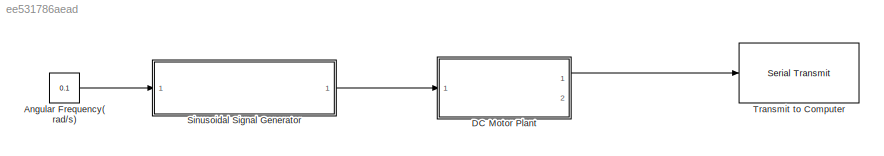
MODEL slx_ee531786aead
KIND model
CONFIG AbsTol = auto
CONFIG EnableMultiTasking = on
CONFIG FixedStep = auto
CONFIG MaxStep = auto
CONFIG MinStep = auto
CONFIG RelTol = 1e-3
CONFIG SampleTimeConstraint = Unconstrained
CONFIG SolverName = FixedStepAuto
CONFIG StartTime = 0.0
CONFIG StopTime = 70
BLOCK [Constant] Angular Frequency(rad//s)
  Value = 0.1
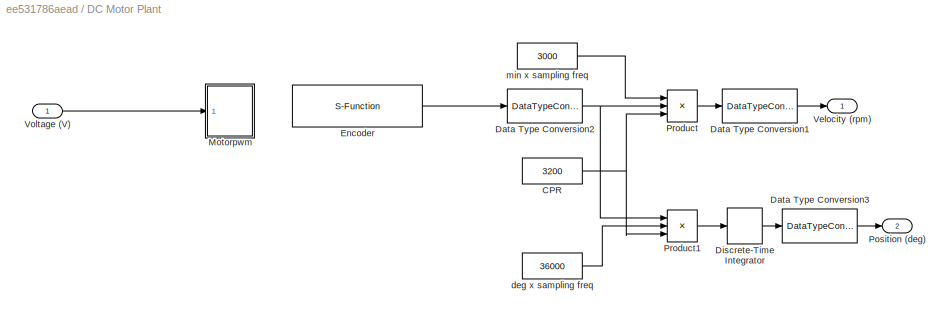
BLOCK [SubSystem] DC Motor Plant
  Ports = [1, 2]
  RequestExecContextInheritance = off
BLOCK [Constant] DC Motor Plant/CPR
  Value = 3200
BLOCK [DataTypeConversion] DC Motor Plant/Data Type Conversion1
  OutDataTypeStr = uint8
  RndMeth = Floor
  SaturateOnIntegerOverflow = off
BLOCK [DataTypeConversion] DC Motor Plant/Data Type Conversion2
  OutDataTypeStr = double
  RndMeth = Round
  SaturateOnIntegerOverflow = off
BLOCK [DataTypeConversion] DC Motor Plant/Data Type Conversion3
  OutDataTypeStr = uint8
  RndMeth = Floor
  SaturateOnIntegerOverflow = off
BLOCK [DiscreteIntegrator] DC Motor Plant/Discrete-Time Integrator
  ICPrevOutput = DiscIntNeverNeededParam
  ICPrevScaledInput = DiscIntNeverNeededParam
  InitialConditionSetting = Auto
  Ports = [1, 1]
  SampleTime = -1
BLOCK [S-Function] DC Motor Plant/Encoder
  CopyFcn = set_param(gcbh,'LinkStatus','none')
  EnableBusSupport = off
  FunctionName = sfcn_encoder
  InitFcn = try, set_param(gcb,'FunctionName','sfcn_encoder'), end
  OpenFcn = sfunctionwizard(gcbh)
  Parameters = uint8(0),uint8(2),uint8(3)
  Ports = [0, 1]
  PreSaveFcn = try, set_param(gcb,'FunctionName','sfcn_encoder'), end
  SFcnIsStateOwnerBlock = off
  SFunctionDeploymentMode = off
  SFunctionModules = sfcn_encoder_wrapper
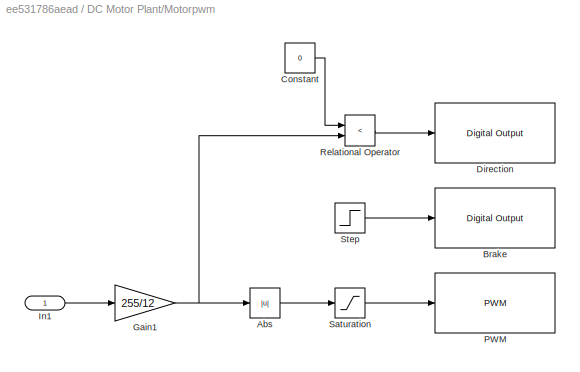
BLOCK [SubSystem] DC Motor Plant/Motorpwm
  Ports = [1]
  RequestExecContextInheritance = off
BLOCK [Abs] DC Motor Plant/Motorpwm/Abs
  SaturateOnIntegerOverflow = off
BLOCK [Reference] DC Motor Plant/Motorpwm/Brake  REF=arduinolib/Digital Output
  Ports = [1]
  SourceBlock = arduinolib/Digital Output
  SourceProductBaseCode = ARDUINO
  SourceType = Arduino Digital Output
BLOCK [Constant] DC Motor Plant/Motorpwm/Constant
  Value = 0
BLOCK [Reference] DC Motor Plant/Motorpwm/Direction   REF=arduinolib/Digital Output
  Ports = [1]
  SourceBlock = arduinolib/Digital Output
  SourceProductBaseCode = ARDUINO
  SourceType = Arduino Digital Output
BLOCK [Gain] DC Motor Plant/Motorpwm/Gain1
  Gain = 255/12
BLOCK [Inport] DC Motor Plant/Motorpwm/In1
BLOCK [Reference] DC Motor Plant/Motorpwm/PWM  REF=arduinolib/PWM
  Ports = [1]
  SourceBlock = arduinolib/PWM
  SourceProductBaseCode = ARDUINO
  SourceType = Arduino PWM
BLOCK [RelationalOperator] DC Motor Plant/Motorpwm/Relational Operator
  InputSameDT = off
  Operator = <
  OutDataTypeStr = boolean
  Ports = [2, 1]
  RndMeth = Simplest
BLOCK [Saturate] DC Motor Plant/Motorpwm/Saturation
  LowerLimit = 0
  UpperLimit = 255
BLOCK [Step] DC Motor Plant/Motorpwm/Step
  After = 0
  SampleTime = 0
  Time = 0
BLOCK [Outport] DC Motor Plant/Position (deg)
  Port = 2
  VectorParamsAs1DForOutWhenUnconnected = off
BLOCK [Product] DC Motor Plant/Product
  Inputs = **/
  Ports = [3, 1]
BLOCK [Product] DC Motor Plant/Product1
  Inputs = **/
  Ports = [3, 1]
BLOCK [Outport] DC Motor Plant/Velocity (rpm)
  VectorParamsAs1DForOutWhenUnconnected = off
BLOCK [Inport] DC Motor Plant/Voltage (V)
BLOCK [Constant] DC Motor Plant/deg x sampling freq
  Value = 36000
BLOCK [Constant] DC Motor Plant/min x sampling freq
  Value = 3000
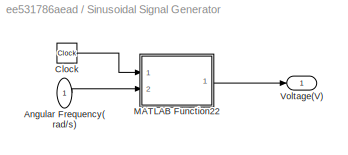
BLOCK [SubSystem] Sinusoidal Signal Generator
  Ports = [1, 1]
  RequestExecContextInheritance = off
BLOCK [Inport] Sinusoidal Signal Generator/Angular Frequency(rad//s)
BLOCK [Clock] Sinusoidal Signal Generator/Clock
  Decimation = 1
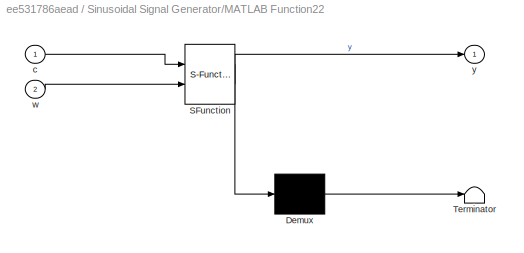
BLOCK [SubSystem] Sinusoidal Signal Generator/MATLAB Function22
  ErrorFcn = Stateflow.Translate.translate
  PermitHierarchicalResolution = ExplicitOnly
  Ports = [2, 1]
  RequestExecContextInheritance = off
  SFBlockType = MATLAB Function
  TreatAsAtomicUnit = on
BLOCK [Demux] Sinusoidal Signal Generator/MATLAB Function22/ Demux 
  Outputs = 1
  Ports = [1, 1]
BLOCK [S-Function] Sinusoidal Signal Generator/MATLAB Function22/ SFunction 
  EnableBusSupport = on
  FunctionName = sf_sfun
  PortCounts = [2 2]
  Ports = [2, 2]
  SFcnIsStateOwnerBlock = off
  SFunctionDeploymentMode = off
  Tag = Stateflow S-Function 1
BLOCK [Terminator] Sinusoidal Signal Generator/MATLAB Function22/ Terminator 
BLOCK [Inport] Sinusoidal Signal Generator/MATLAB Function22/c
BLOCK [Inport] Sinusoidal Signal Generator/MATLAB Function22/w
  Port = 2
BLOCK [Outport] Sinusoidal Signal Generator/MATLAB Function22/y
BLOCK [Outport] Sinusoidal Signal Generator/Voltage(V)
BLOCK [Reference] Transmit to Computer  REF=arduinolib/Serial Transmit
  Ports = [1]
  SourceBlock = arduinolib/Serial Transmit
  SourceProductBaseCode = ARDUINO
  SourceType = Arduino Serial Transmit
LINE Angular Frequency(rad//s):1 -> Sinusoidal Signal Generator:1
NET DC Motor Plant/CPR:1 -> DC Motor Plant/Product1:3, DC Motor Plant/Product:3
LINE DC Motor Plant/Data Type Conversion1:1 -> DC Motor Plant/Velocity (rpm):1
NET DC Motor Plant/Data Type Conversion2:1 -> DC Motor Plant/Product1:1, DC Motor Plant/Product:2
LINE DC Motor Plant/Data Type Conversion3:1 -> DC Motor Plant/Position (deg):1
LINE DC Motor Plant/Discrete-Time Integrator:1 -> DC Motor Plant/Data Type Conversion3:1
LINE DC Motor Plant/Encoder:1 -> DC Motor Plant/Data Type Conversion2:1
LINE DC Motor Plant/Motorpwm/Abs:1 -> DC Motor Plant/Motorpwm/Saturation:1
LINE DC Motor Plant/Motorpwm/Constant:1 -> DC Motor Plant/Motorpwm/Relational Operator:1
NET DC Motor Plant/Motorpwm/Gain1:1 -> DC Motor Plant/Motorpwm/Abs:1, DC Motor Plant/Motorpwm/Relational Operator:2
LINE DC Motor Plant/Motorpwm/In1:1 -> DC Motor Plant/Motorpwm/Gain1:1
LINE DC Motor Plant/Motorpwm/Relational Operator:1 -> DC Motor Plant/Motorpwm/Direction :1
LINE DC Motor Plant/Motorpwm/Saturation:1 -> DC Motor Plant/Motorpwm/PWM:1
LINE DC Motor Plant/Motorpwm/Step:1 -> DC Motor Plant/Motorpwm/Brake:1
LINE DC Motor Plant/Product1:1 -> DC Motor Plant/Discrete-Time Integrator:1
LINE DC Motor Plant/Product:1 -> DC Motor Plant/Data Type Conversion1:1
LINE DC Motor Plant/Voltage (V):1 -> DC Motor Plant/Motorpwm:1
LINE DC Motor Plant/deg x sampling freq:1 -> DC Motor Plant/Product1:2
LINE DC Motor Plant/min x sampling freq:1 -> DC Motor Plant/Product:1
LINE DC Motor Plant:1 -> Transmit to Computer:1
LINE Sinusoidal Signal Generator/Angular Frequency(rad//s):1 -> Sinusoidal Signal Generator/MATLAB Function22:2
LINE Sinusoidal Signal Generator/Clock:1 -> Sinusoidal Signal Generator/MATLAB Function22:1
LINE Sinusoidal Signal Generator/MATLAB Function22:1 -> Sinusoidal Signal Generator/Voltage(V):1
LINE Sinusoidal Signal Generator:1 -> DC Motor Plant:1
note: NET lines group one-source signal fan-out (src -> all destinations, sorted); 1:1 wires keep LINE
CHART Sinusoidal Signal Generator/MATLAB Function22 states=1 transitions=1
  STATE_LABEL 'eML_blk_kernel()'
  STATE_LABEL 'SCRIPT:\nfunction y = fcn2(c,w)\n%#codegen\nif w<1\n    scale=70;\nelseif w<10\n    scale=25;\nelse\n    scale=10;\nend   \n \nif c<scale\n    y = 10*sin(w*c);\nelse\n    y=0;\nend'
CHART  states=0 transitions=0
